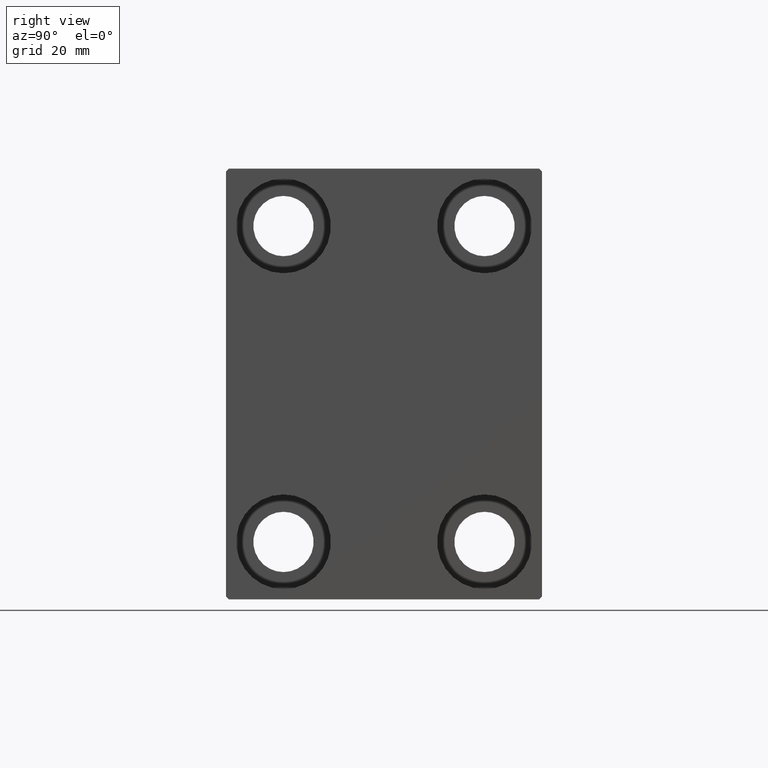
[diagram: clean part render]
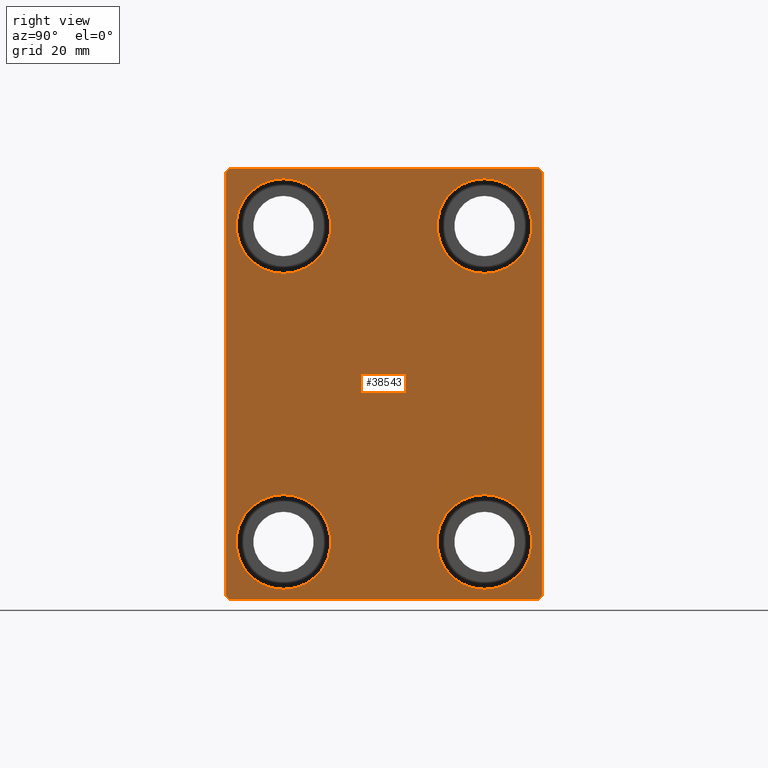
[diagram: same view with one face highlighted and labeled with its STEP entity id]
A machine part, right view. The second image highlights one B-rep face of the part: STEP entity #38543.
In plain terms, the highlighted planar face has unit normal (1, 0, 0).
Its self-contained STEP definition (entity closure, byte-faithful):
#652 = EDGE_CURVE ( 'NONE', #26462, #12028, #33708, .T. ) ;
#878 = VECTOR ( 'NONE', #4770, 1000.000000000000000 ) ;
#1043 = DIRECTION ( 'NONE',  ( 0.000000000000000000, 0.000000000000000000, 1.000000000000000000 ) ) ;
#1147 = AXIS2_PLACEMENT_3D ( 'NONE', #37171, #3362, #6679 ) ;
#1256 = EDGE_CURVE ( 'NONE', #4013, #43390, #34223, .T. ) ;
#1742 = CARTESIAN_POINT ( 'NONE',  ( 75.00000000000000000, -27.00000000000001776, 37.50000000000000000 ) ) ;
#2034 = CIRCLE ( 'NONE', #38272, 8.249999999999992895 ) ;
#2546 = VECTOR ( 'NONE', #26048, 1000.000000000000114 ) ;
#2721 = ORIENTED_EDGE ( 'NONE', *, *, #14064, .T. ) ;
#2899 = CARTESIAN_POINT ( 'NONE',  ( 75.00000000000000000, 17.49999999999999645, -27.50000000000000355 ) ) ;
#3058 = EDGE_CURVE ( 'NONE', #43360, #36285, #16596, .T. ) ;
#3103 = DIRECTION ( 'NONE',  ( -1.000000000000000000, -0.000000000000000000, -0.000000000000000000 ) ) ;
#3215 = EDGE_CURVE ( 'NONE', #43324, #42073, #21667, .T. ) ;
#3362 = DIRECTION ( 'NONE',  ( -1.000000000000000000, -0.000000000000000000, -0.000000000000000000 ) ) ;
#3518 = CARTESIAN_POINT ( 'NONE',  ( 75.00000000000000000, 32.25000000000000000, -32.25000000000000000 ) ) ;
#4013 = VERTEX_POINT ( 'NONE', #40684 ) ;
#4184 = ORIENTED_EDGE ( 'NONE', *, *, #34154, .T. ) ;
#4770 = DIRECTION ( 'NONE',  ( 0.000000000000000000, -9.251858538542970348E-17, 1.000000000000000000 ) ) ;
#4923 = CARTESIAN_POINT ( 'NONE',  ( 75.00000000000000000, -32.25000000000000711, 32.25000000000000711 ) ) ;
#5231 = LINE ( 'NONE', #35280, #34148 ) ;
#5330 = ORIENTED_EDGE ( 'NONE', *, *, #17067, .T. ) ;
#5440 = EDGE_CURVE ( 'NONE', #21419, #41417, #33619, .T. ) ;
#6546 = VECTOR ( 'NONE', #20599, 1000.000000000000000 ) ;
#6679 = DIRECTION ( 'NONE',  ( 0.000000000000000000, 0.000000000000000000, 1.000000000000000000 ) ) ;
#7493 = EDGE_LOOP ( 'NONE', ( #28840, #14403 ) ) ;
#7498 = CARTESIAN_POINT ( 'NONE',  ( 75.00000000000000000, -17.49999999999999645, 19.25000000000000000 ) ) ;
#7896 = EDGE_LOOP ( 'NONE', ( #19226, #28695 ) ) ;
#8010 = EDGE_LOOP ( 'NONE', ( #41631, #2721, #39373, #4184, #40361, #22388, #18239, #24016 ) ) ;
#8246 = LINE ( 'NONE', #4923, #2546 ) ;
#8252 = EDGE_CURVE ( 'NONE', #16472, #43324, #16850, .T. ) ;
#9044 = FACE_BOUND ( 'NONE', #19000, .T. ) ;
#9147 = AXIS2_PLACEMENT_3D ( 'NONE', #31823, #38930, #11348 ) ;
#9785 = DIRECTION ( 'NONE',  ( 0.000000000000000000, 0.000000000000000000, 1.000000000000000000 ) ) ;
#9990 = CARTESIAN_POINT ( 'NONE',  ( 75.00000000000000000, -17.50000000000000355, -27.50000000000000355 ) ) ;
#9997 = LINE ( 'NONE', #17321, #33125 ) ;
#10408 = DIRECTION ( 'NONE',  ( -0.000000000000000000, 0.7071067811865474617, -0.7071067811865474617 ) ) ;
#10903 = CARTESIAN_POINT ( 'NONE',  ( 75.00000000000000000, -17.50000000000000355, -19.25000000000000355 ) ) ;
#11348 = DIRECTION ( 'NONE',  ( 0.000000000000000000, 0.000000000000000000, 1.000000000000000000 ) ) ;
#12028 = VERTEX_POINT ( 'NONE', #22246 ) ;
#12172 = EDGE_CURVE ( 'NONE', #43390, #4013, #16734, .T. ) ;
#12599 = CARTESIAN_POINT ( 'NONE',  ( 75.00000000000000000, 27.00000000000000355, -37.50000000000000000 ) ) ;
#12997 = ORIENTED_EDGE ( 'NONE', *, *, #14952, .T. ) ;
#13560 = DIRECTION ( 'NONE',  ( -1.000000000000000000, -0.000000000000000000, -0.000000000000000000 ) ) ;
#13918 = CARTESIAN_POINT ( 'NONE',  ( 75.00000000000000000, 27.49999999999999645, 37.50000000000000711 ) ) ;
#14064 = EDGE_CURVE ( 'NONE', #36285, #26462, #8246, .T. ) ;
#14403 = ORIENTED_EDGE ( 'NONE', *, *, #5440, .T. ) ;
#14633 = DIRECTION ( 'NONE',  ( -1.000000000000000000, -0.000000000000000000, -0.000000000000000000 ) ) ;
#14819 = CIRCLE ( 'NONE', #9147, 8.250000000000000000 ) ;
#14952 = EDGE_CURVE ( 'NONE', #37804, #40656, #26749, .T. ) ;
#15070 = CARTESIAN_POINT ( 'NONE',  ( 75.00000000000000000, -17.49999999999999645, 27.49999999999999645 ) ) ;
#15098 = CARTESIAN_POINT ( 'NONE',  ( 75.00000000000000000, 17.50000000000000355, 27.49999999999999645 ) ) ;
#15709 = FACE_BOUND ( 'NONE', #7896, .T. ) ;
#16472 = VERTEX_POINT ( 'NONE', #12599 ) ;
#16596 = LINE ( 'NONE', #13918, #6546 ) ;
#16639 = LINE ( 'NONE', #37113, #19625 ) ;
#16734 = CIRCLE ( 'NONE', #32348, 8.250000000000000000 ) ;
#16850 = LINE ( 'NONE', #3518, #26592 ) ;
#16994 = CARTESIAN_POINT ( 'NONE',  ( 75.00000000000000000, 27.49999999999999645, 37.00000000000001421 ) ) ;
#17067 = EDGE_CURVE ( 'NONE', #41991, #38443, #40885, .T. ) ;
#17321 = CARTESIAN_POINT ( 'NONE',  ( 75.00000000000000000, 32.25000000000019185, 32.24999999999975131 ) ) ;
#17808 = DIRECTION ( 'NONE',  ( 1.000000000000000000, 0.000000000000000000, 0.000000000000000000 ) ) ;
#17859 = AXIS2_PLACEMENT_3D ( 'NONE', #37978, #20852, #1043 ) ;
#18239 = ORIENTED_EDGE ( 'NONE', *, *, #3215, .T. ) ;
#19000 = EDGE_LOOP ( 'NONE', ( #5330, #26325 ) ) ;
#19226 = ORIENTED_EDGE ( 'NONE', *, *, #1256, .T. ) ;
#19274 = CARTESIAN_POINT ( 'NONE',  ( 75.00000000000000000, 0.000000000000000000, 0.000000000000000000 ) ) ;
#19423 = EDGE_CURVE ( 'NONE', #42073, #43360, #9997, .T. ) ;
#19625 = VECTOR ( 'NONE', #10408, 1000.000000000000114 ) ;
#20259 = CARTESIAN_POINT ( 'NONE',  ( 75.00000000000000000, -27.50000000000000355, 37.00000000000001421 ) ) ;
#20277 = EDGE_CURVE ( 'NONE', #40656, #37804, #41664, .T. ) ;
#20599 = DIRECTION ( 'NONE',  ( 0.000000000000000000, -1.000000000000000000, -1.261617073437677999E-16 ) ) ;
#20852 = DIRECTION ( 'NONE',  ( -1.000000000000000000, -0.000000000000000000, -0.000000000000000000 ) ) ;
#21419 = VERTEX_POINT ( 'NONE', #42387 ) ;
#21667 = LINE ( 'NONE', #28787, #878 ) ;
#21675 = AXIS2_PLACEMENT_3D ( 'NONE', #9990, #3103, #43368 ) ;
#21766 = DIRECTION ( 'NONE',  ( -1.000000000000000000, -0.000000000000000000, -0.000000000000000000 ) ) ;
#21839 = AXIS2_PLACEMENT_3D ( 'NONE', #19274, #17808, #26400 ) ;
#22246 = CARTESIAN_POINT ( 'NONE',  ( 75.00000000000000000, -27.50000000000000355, -37.00000000000000000 ) ) ;
#22388 = ORIENTED_EDGE ( 'NONE', *, *, #8252, .T. ) ;
#22462 = CARTESIAN_POINT ( 'NONE',  ( 75.00000000000000000, 27.00000000000001066, 37.50000000000000711 ) ) ;
#22478 = AXIS2_PLACEMENT_3D ( 'NONE', #15070, #14633, #31345 ) ;
#22623 = FACE_BOUND ( 'NONE', #7493, .T. ) ;
#23311 = DIRECTION ( 'NONE',  ( -0.000000000000000000, 0.7071067811865474617, 0.7071067811865474617 ) ) ;
#24016 = ORIENTED_EDGE ( 'NONE', *, *, #19423, .T. ) ;
#24556 = ORIENTED_EDGE ( 'NONE', *, *, #20277, .T. ) ;
#24783 = CARTESIAN_POINT ( 'NONE',  ( 75.00000000000000000, -27.00000000000000355, -37.50000000000000000 ) ) ;
#25582 = CARTESIAN_POINT ( 'NONE',  ( 75.00000000000000000, 17.49999999999999645, -19.25000000000000355 ) ) ;
#26048 = DIRECTION ( 'NONE',  ( 0.000000000000000000, -0.7071067811865474617, -0.7071067811865474617 ) ) ;
#26179 = CARTESIAN_POINT ( 'NONE',  ( 75.00000000000000000, -17.49999999999999645, 35.74999999999999289 ) ) ;
#26325 = ORIENTED_EDGE ( 'NONE', *, *, #26962, .T. ) ;
#26400 = DIRECTION ( 'NONE',  ( 0.000000000000000000, 0.000000000000000000, -1.000000000000000000 ) ) ;
#26462 = VERTEX_POINT ( 'NONE', #20259 ) ;
#26592 = VECTOR ( 'NONE', #23311, 1000.000000000000114 ) ;
#26749 = CIRCLE ( 'NONE', #1147, 8.249999999999992895 ) ;
#26962 = EDGE_CURVE ( 'NONE', #38443, #41991, #14819, .T. ) ;
#27235 = AXIS2_PLACEMENT_3D ( 'NONE', #32666, #21766, #39551 ) ;
#28023 = DIRECTION ( 'NONE',  ( -1.000000000000000000, -0.000000000000000000, -0.000000000000000000 ) ) ;
#28695 = ORIENTED_EDGE ( 'NONE', *, *, #12172, .T. ) ;
#28787 = CARTESIAN_POINT ( 'NONE',  ( 75.00000000000000000, 27.50000000000000355, -37.50000000000000000 ) ) ;
#28840 = ORIENTED_EDGE ( 'NONE', *, *, #40219, .T. ) ;
#29482 = DIRECTION ( 'NONE',  ( 0.000000000000000000, 1.000000000000000000, 0.000000000000000000 ) ) ;
#30148 = DIRECTION ( 'NONE',  ( 0.000000000000000000, 0.000000000000000000, -1.000000000000000000 ) ) ;
#30467 = DIRECTION ( 'NONE',  ( -0.000000000000000000, -0.7071067811865426878, 0.7071067811865524577 ) ) ;
#30656 = EDGE_CURVE ( 'NONE', #36738, #16472, #5231, .T. ) ;
#30667 = VECTOR ( 'NONE', #30148, 1000.000000000000000 ) ;
#31345 = DIRECTION ( 'NONE',  ( 0.000000000000000000, 0.000000000000000000, 1.000000000000000000 ) ) ;
#31823 = CARTESIAN_POINT ( 'NONE',  ( 75.00000000000000000, -17.50000000000000355, -27.50000000000000355 ) ) ;
#32348 = AXIS2_PLACEMENT_3D ( 'NONE', #2899, #13560, #9785 ) ;
#32666 = CARTESIAN_POINT ( 'NONE',  ( 75.00000000000000000, 17.50000000000000355, 27.49999999999999645 ) ) ;
#33125 = VECTOR ( 'NONE', #30467, 1000.000000000000000 ) ;
#33619 = CIRCLE ( 'NONE', #27235, 8.249999999999992895 ) ;
#33708 = LINE ( 'NONE', #36831, #30667 ) ;
#34081 = CARTESIAN_POINT ( 'NONE',  ( 75.00000000000000000, 27.50000000000000355, -37.00000000000000000 ) ) ;
#34148 = VECTOR ( 'NONE', #29482, 1000.000000000000000 ) ;
#34154 = EDGE_CURVE ( 'NONE', #12028, #36738, #16639, .T. ) ;
#34223 = CIRCLE ( 'NONE', #17859, 8.250000000000000000 ) ;
#35280 = CARTESIAN_POINT ( 'NONE',  ( 75.00000000000000000, -27.50000000000000355, -37.50000000000000000 ) ) ;
#36191 = FACE_OUTER_BOUND ( 'NONE', #8010, .T. ) ;
#36285 = VERTEX_POINT ( 'NONE', #1742 ) ;
#36738 = VERTEX_POINT ( 'NONE', #24783 ) ;
#36831 = CARTESIAN_POINT ( 'NONE',  ( 75.00000000000000000, -27.50000000000000355, 37.50000000000000000 ) ) ;
#36837 = EDGE_LOOP ( 'NONE', ( #12997, #24556 ) ) ;
#37113 = CARTESIAN_POINT ( 'NONE',  ( 75.00000000000000000, -32.25000000000000000, -32.25000000000000000 ) ) ;
#37171 = CARTESIAN_POINT ( 'NONE',  ( 75.00000000000000000, -17.49999999999999645, 27.49999999999999645 ) ) ;
#37245 = CARTESIAN_POINT ( 'NONE',  ( 75.00000000000000000, -17.50000000000000355, -35.75000000000000711 ) ) ;
#37804 = VERTEX_POINT ( 'NONE', #7498 ) ;
#37978 = CARTESIAN_POINT ( 'NONE',  ( 75.00000000000000000, 17.49999999999999645, -27.50000000000000355 ) ) ;
#38052 = PLANE ( 'NONE',  #21839 ) ;
#38272 = AXIS2_PLACEMENT_3D ( 'NONE', #15098, #28023, #42031 ) ;
#38443 = VERTEX_POINT ( 'NONE', #10903 ) ;
#38543 = ADVANCED_FACE ( 'NONE', ( #15709, #39516, #22623, #9044, #36191 ), #38052, .T. ) ;
#38930 = DIRECTION ( 'NONE',  ( -1.000000000000000000, -0.000000000000000000, -0.000000000000000000 ) ) ;
#39373 = ORIENTED_EDGE ( 'NONE', *, *, #652, .T. ) ;
#39516 = FACE_BOUND ( 'NONE', #36837, .T. ) ;
#39551 = DIRECTION ( 'NONE',  ( 0.000000000000000000, 0.000000000000000000, 1.000000000000000000 ) ) ;
#40219 = EDGE_CURVE ( 'NONE', #41417, #21419, #2034, .T. ) ;
#40361 = ORIENTED_EDGE ( 'NONE', *, *, #30656, .T. ) ;
#40656 = VERTEX_POINT ( 'NONE', #26179 ) ;
#40684 = CARTESIAN_POINT ( 'NONE',  ( 75.00000000000000000, 17.49999999999999645, -35.75000000000000711 ) ) ;
#40885 = CIRCLE ( 'NONE', #21675, 8.250000000000000000 ) ;
#41417 = VERTEX_POINT ( 'NONE', #43582 ) ;
#41631 = ORIENTED_EDGE ( 'NONE', *, *, #3058, .T. ) ;
#41664 = CIRCLE ( 'NONE', #22478, 8.249999999999992895 ) ;
#41991 = VERTEX_POINT ( 'NONE', #37245 ) ;
#42031 = DIRECTION ( 'NONE',  ( 0.000000000000000000, 0.000000000000000000, 1.000000000000000000 ) ) ;
#42073 = VERTEX_POINT ( 'NONE', #16994 ) ;
#42387 = CARTESIAN_POINT ( 'NONE',  ( 75.00000000000000000, 17.50000000000000355, 35.74999999999999289 ) ) ;
#43324 = VERTEX_POINT ( 'NONE', #34081 ) ;
#43360 = VERTEX_POINT ( 'NONE', #22462 ) ;
#43368 = DIRECTION ( 'NONE',  ( 0.000000000000000000, 0.000000000000000000, 1.000000000000000000 ) ) ;
#43390 = VERTEX_POINT ( 'NONE', #25582 ) ;
#43582 = CARTESIAN_POINT ( 'NONE',  ( 75.00000000000000000, 17.50000000000000355, 19.25000000000000000 ) ) ;